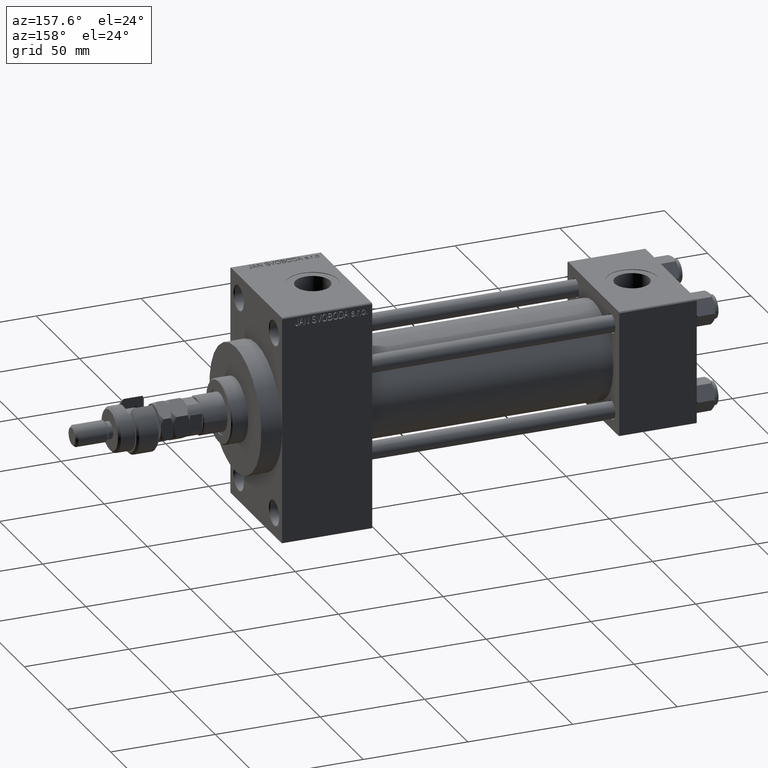
[diagram: clean part render]
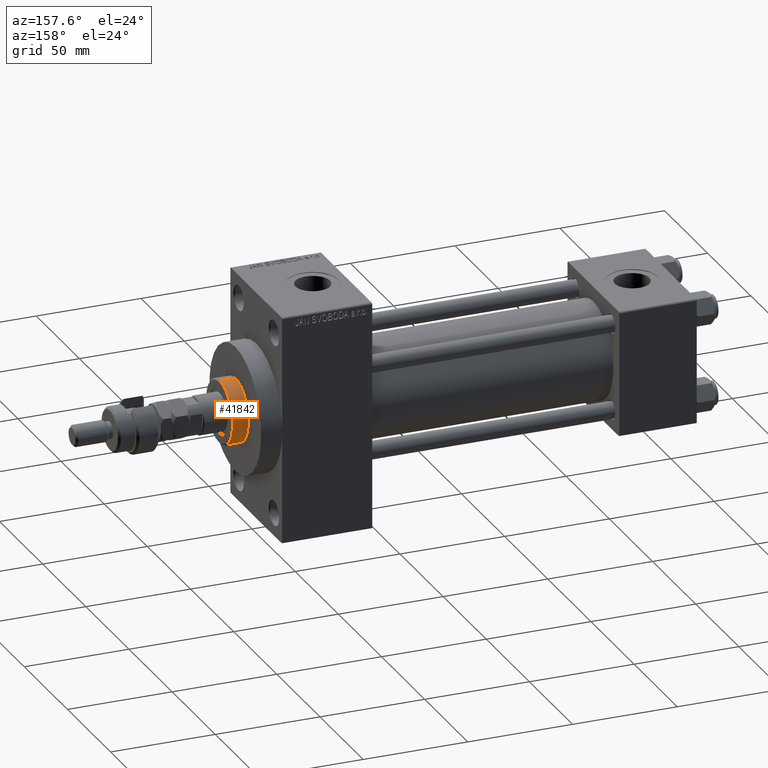
[diagram: same view with one face highlighted and labeled with its STEP entity id]
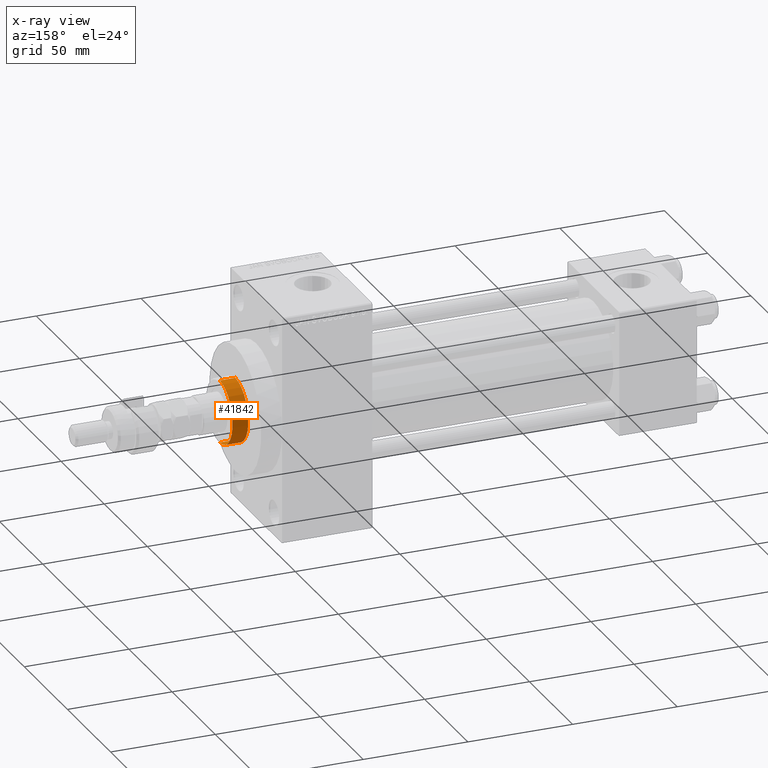
[diagram: x-ray of the same camera — body ghosted, the highlighted face saturated]
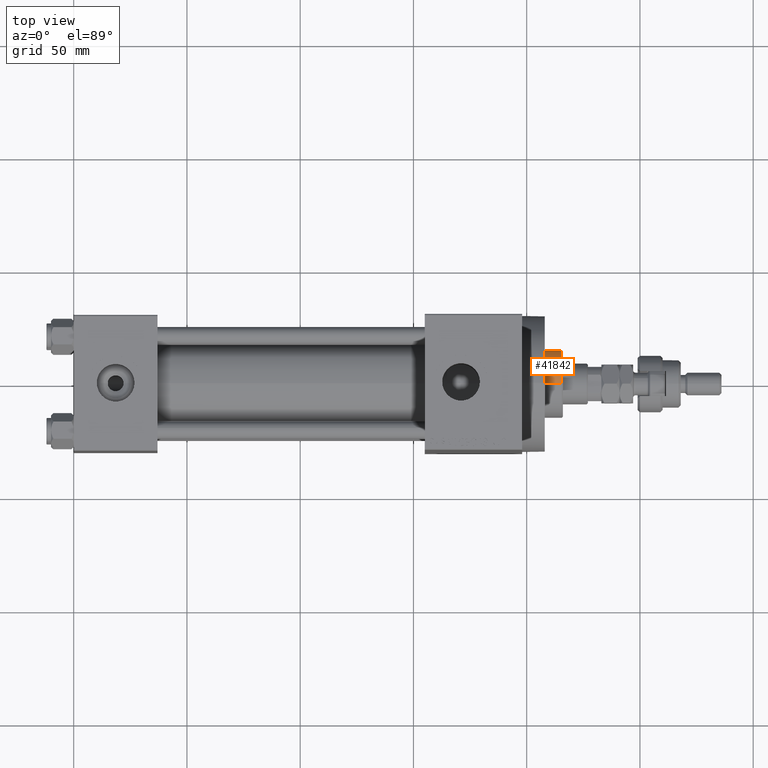
[diagram: same view with one face highlighted and labeled with its STEP entity id]
A machine part, auxiliary view. The second image highlights one B-rep face of the part: STEP entity #41842.
The next image is the same camera in x-ray: the body ghosted, the highlighted face saturated — about 0% of this face is hidden behind the body in this view.
A second angle (top view) of the same face is appended — the face is thin or edge-on in the first view.
In plain terms, the highlighted cylindrical surface (edge-blend (fillet) strip) has radius 15 mm, axis along (-1, 0, 0).
Its self-contained STEP definition (entity closure, byte-faithful):
#5 = AXIS2_PLACEMENT_3D ( 'NONE', #41787, #45082, #24927 ) ;
#923 = VERTEX_POINT ( 'NONE', #44575 ) ;
#1396 = CYLINDRICAL_SURFACE ( 'NONE', #5, 15.00000000000000000 ) ;
#4154 = CARTESIAN_POINT ( 'NONE',  ( -15.00000000000000000, 0.000000000000000000, 43.25999999999999801 ) ) ;
#4566 = VECTOR ( 'NONE', #27401, 1000.000000000000000 ) ;
#5570 = DIRECTION ( 'NONE',  ( 1.000000000000000000, 0.000000000000000000, 0.000000000000000000 ) ) ;
#6252 = AXIS2_PLACEMENT_3D ( 'NONE', #9867, #21495, #5570 ) ;
#6390 = EDGE_LOOP ( 'NONE', ( #49959, #37766, #27839, #24459 ) ) ;
#8347 = EDGE_CURVE ( 'NONE', #923, #10018, #24576, .T. ) ;
#9867 = CARTESIAN_POINT ( 'NONE',  ( 0.000000000000000000, 0.000000000000000000, 50.75999999999998380 ) ) ;
#10018 = VERTEX_POINT ( 'NONE', #4154 ) ;
#12109 = EDGE_CURVE ( 'NONE', #19584, #33980, #31695, .T. ) ;
#15288 = EDGE_CURVE ( 'NONE', #19584, #923, #41835, .T. ) ;
#17733 = DIRECTION ( 'NONE',  ( 1.000000000000000000, 0.000000000000000000, 0.000000000000000000 ) ) ;
#19584 = VERTEX_POINT ( 'NONE', #28228 ) ;
#21033 = DIRECTION ( 'NONE',  ( -0.000000000000000000, -0.000000000000000000, -1.000000000000000000 ) ) ;
#21495 = DIRECTION ( 'NONE',  ( 0.000000000000000000, 0.000000000000000000, -1.000000000000000000 ) ) ;
#21770 = CARTESIAN_POINT ( 'NONE',  ( -15.00000000000000000, 0.000000000000000000, 51.25999999999999801 ) ) ;
#24459 = ORIENTED_EDGE ( 'NONE', *, *, #48172, .T. ) ;
#24576 = LINE ( 'NONE', #21770, #44898 ) ;
#24927 = DIRECTION ( 'NONE',  ( -1.000000000000000000, 0.000000000000000000, 0.000000000000000000 ) ) ;
#27401 = DIRECTION ( 'NONE',  ( -0.000000000000000000, -0.000000000000000000, -1.000000000000000000 ) ) ;
#27480 = CIRCLE ( 'NONE', #46880, 15.00000000000000000 ) ;
#27839 = ORIENTED_EDGE ( 'NONE', *, *, #8347, .T. ) ;
#28228 = CARTESIAN_POINT ( 'NONE',  ( 15.00000000000000000, 1.836970198721029589E-15, 50.75999999999998380 ) ) ;
#31695 = LINE ( 'NONE', #35493, #4566 ) ;
#33406 = DIRECTION ( 'NONE',  ( 0.000000000000000000, 0.000000000000000000, 1.000000000000000000 ) ) ;
#33980 = VERTEX_POINT ( 'NONE', #34255 ) ;
#34255 = CARTESIAN_POINT ( 'NONE',  ( 15.00000000000000000, 1.836970198721029589E-15, 43.25999999999999801 ) ) ;
#35493 = CARTESIAN_POINT ( 'NONE',  ( 15.00000000000000000, 1.836970198721029589E-15, 51.25999999999999801 ) ) ;
#36072 = FACE_OUTER_BOUND ( 'NONE', #6390, .T. ) ;
#37766 = ORIENTED_EDGE ( 'NONE', *, *, #15288, .T. ) ;
#41743 = CARTESIAN_POINT ( 'NONE',  ( 0.000000000000000000, 0.000000000000000000, 43.25999999999999801 ) ) ;
#41787 = CARTESIAN_POINT ( 'NONE',  ( 0.000000000000000000, 0.000000000000000000, 51.25999999999999801 ) ) ;
#41835 = CIRCLE ( 'NONE', #6252, 15.00000000000000000 ) ;
#41842 = ADVANCED_FACE ( 'NONE', ( #36072 ), #1396, .T. ) ;
#44575 = CARTESIAN_POINT ( 'NONE',  ( -15.00000000000000000, 0.000000000000000000, 50.75999999999998380 ) ) ;
#44898 = VECTOR ( 'NONE', #21033, 1000.000000000000000 ) ;
#45082 = DIRECTION ( 'NONE',  ( -0.000000000000000000, -0.000000000000000000, -1.000000000000000000 ) ) ;
#46880 = AXIS2_PLACEMENT_3D ( 'NONE', #41743, #33406, #17733 ) ;
#48172 = EDGE_CURVE ( 'NONE', #10018, #33980, #27480, .T. ) ;
#49959 = ORIENTED_EDGE ( 'NONE', *, *, #12109, .F. ) ;